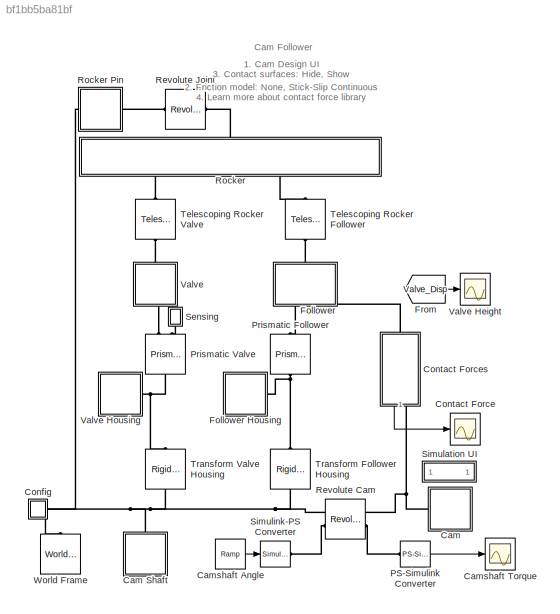
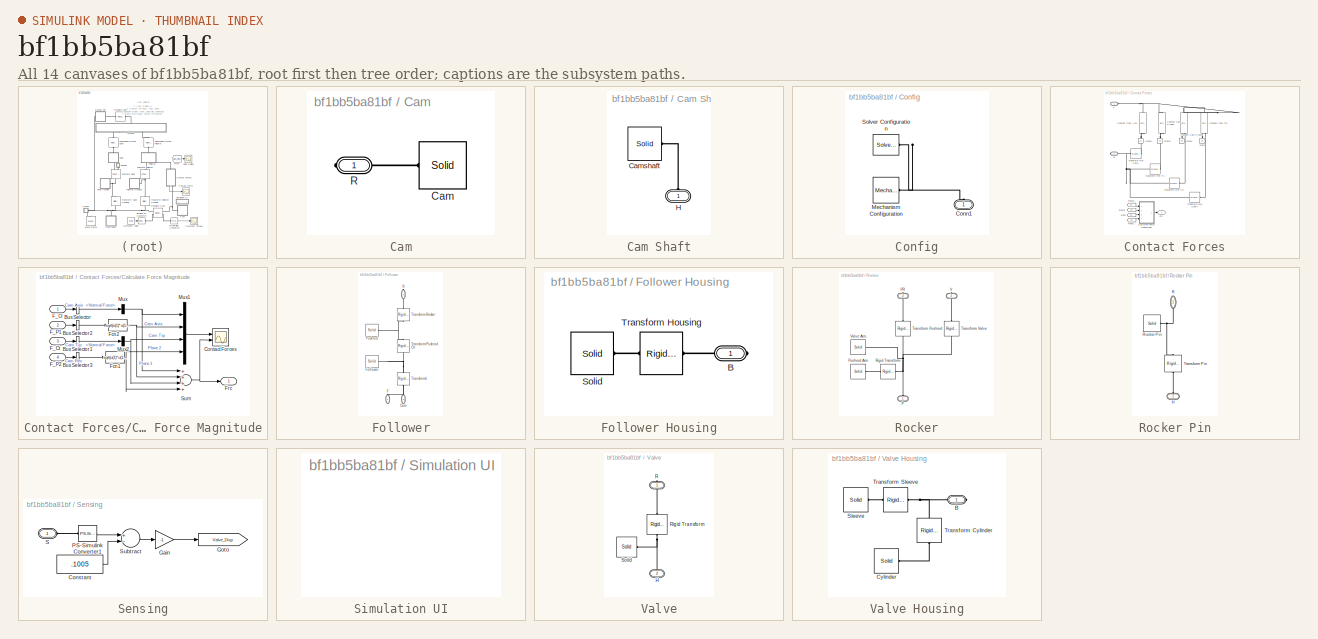
[diagram: thumbnail index - all 14 canvases of the model, root first then tree order]
MODEL slx_bf1bb5ba81bf
KIND model
CONFIG AbsTol = 1e-5
CONFIG EnableMultiTasking = on
CONFIG FixedStep = auto
CONFIG MaxStep = 1e-2
CONFIG MinStep = auto
CONFIG PostLoadFcn = warning off Simulink:Engine:UsingDefaultMaxStepSize\nwarning off sm:compiler:topologyAnalysis:DanglingBlock\n
CONFIG PreLoadFcn = Cam_Parameters
CONFIG RelTol = 1e-4
CONFIG SampleTimeConstraint = Unconstrained
CONFIG Solver = ode15s
CONFIG SolverName = ode15s
CONFIG StartFcn = tic;
CONFIG StartTime = 0.0
CONFIG StopFcn = Elapsed_Sim_Time = toc;\ndisp(['Elapsed Sim Time = ' num2str(Elapsed_Sim_Time)]);\n
CONFIG StopTime = 15
BLOCK [SubSystem] Cam
  Ports = [0, 0, 0, 0, 0, 0, 1]
  RequestExecContextInheritance = off
  Tag = CustomStyle
  Variant = off
BLOCK [SubSystem] Cam Shaft
  Ports = [0, 0, 0, 0, 0, 1]
  RequestExecContextInheritance = off
  Tag = CustomStyle
  Variant = off
BLOCK [Reference] Cam Shaft/Camshaft  REF=sm_lib/Body Elements/Solid
  Ports = [0, 0, 0, 0, 0, 0, 1]
  SourceBlock = sm_lib/Body Elements/Solid
  SourceType = Solid
BLOCK [PMIOPort] Cam Shaft/H
  Port = 1
  Side = Left
BLOCK [Reference] Cam/Cam  REF=sm_lib/Body Elements/Solid
  Ports = [0, 0, 0, 0, 0, 0, 1]
  SourceBlock = sm_lib/Body Elements/Solid
  SourceType = Solid
BLOCK [PMIOPort] Cam/R
  Port = 1
  Side = Right
BLOCK [Reference] Camshaft Angle  REF=simulink/Sources/Ramp
  Ports = [0, 1]
  SourceBlock = simulink/Sources/Ramp
  SourceType = Ramp
BLOCK [Scope] Camshaft Torque
  NumInputPorts = 1
  Ports = [1]
  ScopeSpecificationString = Simulink.scopes.TimeScopeBlockCfg('CurrentConfiguration', extmgr.ConfigurationSet(extmgr.Configuration('Core','General UI',true,'FigureColor',[0.501960784313725 0.501960784313725 0.501960784313725]),extmgr.Configuration('Core','Source UI',true),extmgr.Configuration('Sources','WiredSimulink',true,'DataLoggingVariableName','ScopeData4','DataLoggingSaveFormat','StructureWithTime','DataLoggingDecimati...<+2691ch>
BLOCK [SubSystem] Config
  Ports = [0, 0, 0, 0, 0, 1]
  RequestExecContextInheritance = off
  Variant = off
BLOCK [PMIOPort] Config/Conn1
  Port = 1
  Side = Left
BLOCK [Reference] Config/Mechanism Configuration  REF=sm_lib/Utilities/Mechanism
Configuration
  Ports = [0, 0, 0, 0, 0, 0, 1]
  SourceBlock = sm_lib/Utilities/Mechanism\nConfiguration
  SourceType = Mechanism\nConfiguration
BLOCK [Reference] Config/Solver Configuration  REF=nesl_utility/Solver
Configuration
  Ports = [0, 0, 0, 0, 0, 0, 1]
  SourceBlock = nesl_utility/Solver\nConfiguration
  SourceType = Solver\nConfiguration
BLOCK [Scope] Contact Force
  NumInputPorts = 1
  Ports = [1]
  ScopeSpecificationString = Simulink.scopes.TimeScopeBlockCfg('CurrentConfiguration', extmgr.ConfigurationSet(extmgr.Configuration('Core','General UI',true,'FigureColor',[0.501960784313725 0.501960784313725 0.501960784313725]),extmgr.Configuration('Core','Source UI',true),extmgr.Configuration('Sources','WiredSimulink',true,'DataLogging',true,'DataLoggingVariableName','Contact_Force','DataLoggingSaveFormat','StructureWithTime...<+2665ch>
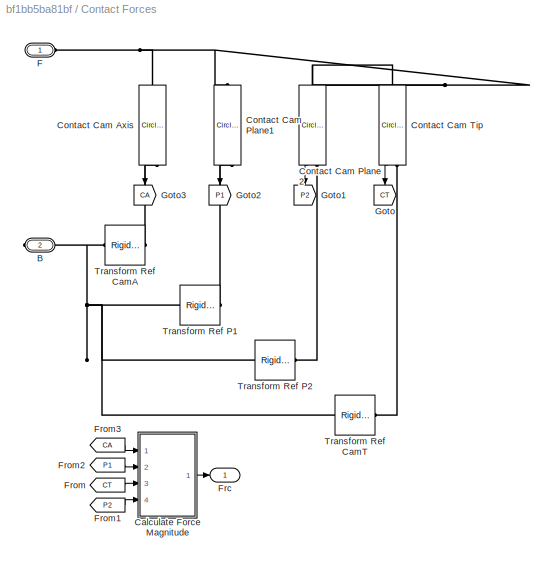
BLOCK [SubSystem] Contact Forces
  Ports = [0, 1, 0, 0, 0, 1, 1]
  RequestExecContextInheritance = off
  Variant = off
BLOCK [PMIOPort] Contact Forces/B
  Port = 2
  Side = Right
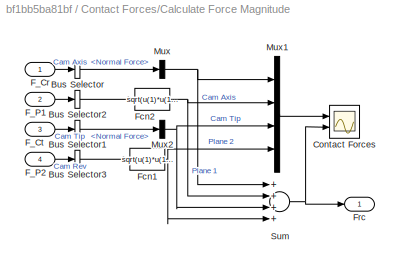
BLOCK [SubSystem] Contact Forces/Calculate Force Magnitude
  Ports = [4, 1]
  RequestExecContextInheritance = off
  Variant = off
BLOCK [BusSelector] Contact Forces/Calculate Force Magnitude/Bus Selector
  OutputSignals = Normal Force
  Ports = [1, 1]
BLOCK [BusSelector] Contact Forces/Calculate Force Magnitude/Bus Selector1
  OutputSignals = Normal Force
  Ports = [1, 1]
BLOCK [BusSelector] Contact Forces/Calculate Force Magnitude/Bus Selector2
  OutputAsBus = on
  OutputSignals = FCir.Fx,FCir.Fy
  Ports = [1, 1]
BLOCK [BusSelector] Contact Forces/Calculate Force Magnitude/Bus Selector3
  OutputAsBus = on
  OutputSignals = FCir.Fx,FCir.Fy
  Ports = [1, 1]
BLOCK [Scope] Contact Forces/Calculate Force Magnitude/Contact Forces
  NumInputPorts = 2
  Ports = [2]
  ScopeSpecificationString = Simulink.scopes.TimeScopeBlockCfg('CurrentConfiguration', extmgr.ConfigurationSet(extmgr.Configuration('Core','General UI',true,'FigureColor',[0.501960784313725 0.501960784313725 0.501960784313725]),extmgr.Configuration('Core','Source UI',true),extmgr.Configuration('Sources','WiredSimulink',true,'DataLoggingVariableName','ScopeData3','DataLoggingSaveFormat','StructureWithTime','DataLoggingDecimati...<+3835ch>
BLOCK [Inport] Contact Forces/Calculate Force Magnitude/F_Cr
  IconDisplay = Port number
BLOCK [Inport] Contact Forces/Calculate Force Magnitude/F_Ct
  IconDisplay = Port number
  Port = 3
BLOCK [Inport] Contact Forces/Calculate Force Magnitude/F_P1
  IconDisplay = Port number
  Port = 2
BLOCK [Inport] Contact Forces/Calculate Force Magnitude/F_P2
  IconDisplay = Port number
  Port = 4
BLOCK [Fcn] Contact Forces/Calculate Force Magnitude/Fcn1
  Expr = sqrt(u(1)*u(1)+u(2)*u(2))
BLOCK [Fcn] Contact Forces/Calculate Force Magnitude/Fcn2
  Expr = sqrt(u(1)*u(1)+u(2)*u(2))
BLOCK [Outport] Contact Forces/Calculate Force Magnitude/Frc
  IconDisplay = Port number
BLOCK [Mux] Contact Forces/Calculate Force Magnitude/Mux
  DisplayOption = bar
  Inputs = 1
  Ports = [1, 1]
BLOCK [Mux] Contact Forces/Calculate Force Magnitude/Mux1
  DisplayOption = bar
  Ports = [4, 1]
BLOCK [Mux] Contact Forces/Calculate Force Magnitude/Mux2
  DisplayOption = bar
  Inputs = 1
  Ports = [1, 1]
BLOCK [Sum] Contact Forces/Calculate Force Magnitude/Sum
  InputSameDT = off
  Inputs = ++++
  OutDataTypeStr = Inherit: Inherit via internal rule
  Ports = [4, 1]
  SaturateOnIntegerOverflow = off
BLOCK [Reference] Contact Forces/Contact Cam Axis  REF=Contact_Forces_Lib/2D/Circle to Circle Force
  Ports = [0, 1, 0, 0, 0, 1, 1]
  SourceBlock = Contact_Forces_Lib/2D/Circle to Circle Force
  SourceType = Circle to Circle Force
BLOCK [Reference] Contact Forces/Contact Cam Plane 2  REF=Contact_Forces_Lib/2D/Circle to Finite Line Force
  Ports = [0, 1, 0, 0, 0, 1, 1]
  SourceBlock = Contact_Forces_Lib/2D/Circle to Finite Line Force
  SourceType = Circle on Finite Line Force
BLOCK [Reference] Contact Forces/Contact Cam Plane1  REF=Contact_Forces_Lib/2D/Circle to Finite Line Force
  Ports = [0, 1, 0, 0, 0, 1, 1]
  SourceBlock = Contact_Forces_Lib/2D/Circle to Finite Line Force
  SourceType = Circle on Finite Line Force
BLOCK [Reference] Contact Forces/Contact Cam Tip  REF=Contact_Forces_Lib/2D/Circle to Circle Force
  Ports = [0, 1, 0, 0, 0, 1, 1]
  SourceBlock = Contact_Forces_Lib/2D/Circle to Circle Force
  SourceType = Circle to Circle Force
BLOCK [PMIOPort] Contact Forces/F
  Port = 1
  Side = Left
BLOCK [Outport] Contact Forces/Frc
  IconDisplay = Port number
BLOCK [From] Contact Forces/From
  GotoTag = CT
BLOCK [From] Contact Forces/From1
  GotoTag = P2
BLOCK [From] Contact Forces/From2
  GotoTag = P1
BLOCK [From] Contact Forces/From3
  GotoTag = CA
BLOCK [Goto] Contact Forces/Goto
  GotoTag = CT
BLOCK [Goto] Contact Forces/Goto1
  GotoTag = P2
BLOCK [Goto] Contact Forces/Goto2
  GotoTag = P1
BLOCK [Goto] Contact Forces/Goto3
  GotoTag = CA
BLOCK [Reference] Contact Forces/Transform Ref CamA  REF=sm_lib/Frames and
Transforms/Rigid
Transform
  Ports = [0, 0, 0, 0, 0, 1, 1]
  SourceBlock = sm_lib/Frames and\nTransforms/Rigid\nTransform
  SourceType = Rigid\nTransform
BLOCK [Reference] Contact Forces/Transform Ref CamT  REF=sm_lib/Frames and
Transforms/Rigid
Transform
  Ports = [0, 0, 0, 0, 0, 1, 1]
  SourceBlock = sm_lib/Frames and\nTransforms/Rigid\nTransform
  SourceType = Rigid\nTransform
BLOCK [Reference] Contact Forces/Transform Ref P1  REF=sm_lib/Frames and
Transforms/Rigid
Transform
  Ports = [0, 0, 0, 0, 0, 1, 1]
  SourceBlock = sm_lib/Frames and\nTransforms/Rigid\nTransform
  SourceType = Rigid\nTransform
BLOCK [Reference] Contact Forces/Transform Ref P2  REF=sm_lib/Frames and
Transforms/Rigid
Transform
  Ports = [0, 0, 0, 0, 0, 1, 1]
  SourceBlock = sm_lib/Frames and\nTransforms/Rigid\nTransform
  SourceType = Rigid\nTransform
BLOCK [SubSystem] Follower
  Ports = [0, 0, 0, 0, 0, 2, 1]
  RequestExecContextInheritance = off
  Tag = CustomStyle
  Variant = off
BLOCK [SubSystem] Follower Housing
  Ports = [0, 0, 0, 0, 0, 0, 1]
  RequestExecContextInheritance = off
  Tag = CustomStyle
  Variant = off
BLOCK [PMIOPort] Follower Housing/B
  Port = 1
  Side = Right
BLOCK [Reference] Follower Housing/Solid  REF=sm_lib/Body Elements/Solid
  Ports = [0, 0, 0, 0, 0, 0, 1]
  SourceBlock = sm_lib/Body Elements/Solid
  SourceType = Solid
BLOCK [Reference] Follower Housing/Transform Housing  REF=sm_lib/Frames and
Transforms/Rigid
Transform
  Ports = [0, 0, 0, 0, 0, 1, 1]
  SourceBlock = sm_lib/Frames and\nTransforms/Rigid\nTransform
  SourceType = Rigid\nTransform
BLOCK [PMIOPort] Follower/Cam
  Port = 3
  Side = Left
BLOCK [PMIOPort] Follower/F
  Port = 1
  Side = Left
BLOCK [Reference] Follower/Follower  REF=sm_lib/Body Elements/Solid
  Ports = [0, 0, 0, 0, 0, 0, 1]
  SourceBlock = sm_lib/Body Elements/Solid
  SourceType = Solid
BLOCK [Reference] Follower/Pushrod  REF=sm_lib/Body Elements/Solid
  Ports = [0, 0, 0, 0, 0, 0, 1]
  SourceBlock = sm_lib/Body Elements/Solid
  SourceType = Solid
BLOCK [PMIOPort] Follower/R
  Port = 2
  Side = Right
BLOCK [Reference] Follower/Transform Pushrod Ctr  REF=sm_lib/Frames and
Transforms/Rigid
Transform
  Ports = [0, 0, 0, 0, 0, 1, 1]
  SourceBlock = sm_lib/Frames and\nTransforms/Rigid\nTransform
  SourceType = Rigid\nTransform
BLOCK [Reference] Follower/Transform Rocker  REF=sm_lib/Frames and
Transforms/Rigid
Transform
  Ports = [0, 0, 0, 0, 0, 1, 1]
  SourceBlock = sm_lib/Frames and\nTransforms/Rigid\nTransform
  SourceType = Rigid\nTransform
BLOCK [Reference] Follower/Transform1  REF=sm_lib/Frames and
Transforms/Rigid
Transform
  Ports = [0, 0, 0, 0, 0, 1, 1]
  SourceBlock = sm_lib/Frames and\nTransforms/Rigid\nTransform
  SourceType = Rigid\nTransform
BLOCK [From] From
  GotoTag = Valve_Disp
  TagVisibility = global
BLOCK [Reference] PS-Simulink Converter  REF=nesl_utility/PS-Simulink
Converter
  Ports = [0, 1, 0, 0, 0, 1]
  SourceBlock = nesl_utility/PS-Simulink\nConverter
  SourceType = PS-Simulink\nConverter
BLOCK [Reference] Prismatic Follower  REF=sm_lib/Joints/Prismatic
Joint
  Ports = [0, 0, 0, 0, 0, 1, 1]
  SourceBlock = sm_lib/Joints/Prismatic\nJoint
  SourceType = Prismatic\nJoint
BLOCK [Reference] Prismatic Valve  REF=sm_lib/Joints/Prismatic
Joint
  Ports = [0, 0, 0, 0, 0, 1, 2]
  SourceBlock = sm_lib/Joints/Prismatic\nJoint
  SourceType = Prismatic\nJoint
BLOCK [Reference] Revolute Cam  REF=sm_lib/Joints/Revolute Joint
  Ports = [0, 0, 0, 0, 0, 2, 2]
  SourceBlock = sm_lib/Joints/Revolute Joint
  SourceType = Revolute Joint
BLOCK [Reference] Revolute Joint  REF=sm_lib/Joints/Revolute Joint
  Ports = [0, 0, 0, 0, 0, 1, 1]
  SourceBlock = sm_lib/Joints/Revolute Joint
  SourceType = Revolute Joint
BLOCK [SubSystem] Rocker
  Ports = [0, 0, 0, 0, 0, 1, 2]
  RequestExecContextInheritance = off
  Tag = CustomStyle
  Variant = off
BLOCK [SubSystem] Rocker Pin
  Ports = [0, 0, 0, 0, 0, 1, 1]
  RequestExecContextInheritance = off
  Tag = CustomStyle
  Variant = off
BLOCK [PMIOPort] Rocker Pin/H
  Port = 2
  Side = Left
BLOCK [PMIOPort] Rocker Pin/R
  Port = 1
  Side = Right
BLOCK [Reference] Rocker Pin/Rocker Pin  REF=sm_lib/Body Elements/Solid
  Ports = [0, 0, 0, 0, 0, 0, 1]
  SourceBlock = sm_lib/Body Elements/Solid
  SourceType = Solid
BLOCK [Reference] Rocker Pin/Transform Pin  REF=sm_lib/Frames and
Transforms/Rigid
Transform
  Ports = [0, 0, 0, 0, 0, 1, 1]
  SourceBlock = sm_lib/Frames and\nTransforms/Rigid\nTransform
  SourceType = Rigid\nTransform
BLOCK [PMIOPort] Rocker/P
  Port = 1
  Side = Left
BLOCK [PMIOPort] Rocker/PR
  Port = 3
  Side = Right
BLOCK [Reference] Rocker/Pushrod Arm  REF=sm_lib/Body Elements/Solid
  Ports = [0, 0, 0, 0, 0, 0, 1]
  SourceBlock = sm_lib/Body Elements/Solid
  SourceType = Solid
BLOCK [Reference] Rocker/Rigid Transform  REF=sm_lib/Frames and
Transforms/Rigid
Transform
  Ports = [0, 0, 0, 0, 0, 1, 1]
  SourceBlock = sm_lib/Frames and\nTransforms/Rigid\nTransform
  SourceType = Rigid\nTransform
BLOCK [Reference] Rocker/Transform Pushrod  REF=sm_lib/Frames and
Transforms/Rigid
Transform
  Ports = [0, 0, 0, 0, 0, 1, 1]
  SourceBlock = sm_lib/Frames and\nTransforms/Rigid\nTransform
  SourceType = Rigid\nTransform
BLOCK [Reference] Rocker/Transform Valve  REF=sm_lib/Frames and
Transforms/Rigid
Transform
  Ports = [0, 0, 0, 0, 0, 1, 1]
  SourceBlock = sm_lib/Frames and\nTransforms/Rigid\nTransform
  SourceType = Rigid\nTransform
BLOCK [PMIOPort] Rocker/V
  Port = 2
  Side = Right
BLOCK [Reference] Rocker/Valve Arm  REF=sm_lib/Body Elements/Solid
  Ports = [0, 0, 0, 0, 0, 0, 1]
  SourceBlock = sm_lib/Body Elements/Solid
  SourceType = Solid
BLOCK [SubSystem] Sensing
  Ports = [0, 0, 0, 0, 0, 1]
  RequestExecContextInheritance = off
  Variant = off
BLOCK [Constant] Sensing/Constant
  Value = .1005
BLOCK [Gain] Sensing/Gain
  Gain = -1
  OutDataTypeStr = Inherit: Inherit via internal rule
  ParamDataTypeStr = Inherit: Inherit via internal rule
  SaturateOnIntegerOverflow = off
BLOCK [Goto] Sensing/Goto
  GotoTag = Valve_Disp
  TagVisibility = global
BLOCK [Reference] Sensing/PS-Simulink Converter1  REF=nesl_utility/PS-Simulink
Converter
  Ports = [0, 1, 0, 0, 0, 1]
  SourceBlock = nesl_utility/PS-Simulink\nConverter
  SourceType = PS-Simulink\nConverter
BLOCK [PMIOPort] Sensing/S
  Port = 1
  Side = Left
BLOCK [Sum] Sensing/Subtract
  InputSameDT = off
  Inputs = +-
  OutDataTypeStr = Inherit: Inherit via internal rule
  Ports = [2, 1]
  SaturateOnIntegerOverflow = off
BLOCK [SubSystem] Simulation UI
  OpenFcn = Cam_Follower_UI
  Ports = []
  RequestExecContextInheritance = off
  Variant = off
BLOCK [Reference] Simulink-PS Converter  REF=nesl_utility/Simulink-PS
Converter
  Ports = [1, 0, 0, 0, 0, 0, 1]
  SourceBlock = nesl_utility/Simulink-PS\nConverter
  SourceType = Simulink-PS\nConverter
BLOCK [Reference] Telescoping Rocker Follower  REF=sm_lib/Joints/Telescoping
Joint
  Ports = [0, 0, 0, 0, 0, 1, 1]
  SourceBlock = sm_lib/Joints/Telescoping\nJoint
  SourceType = Telescoping\nJoint
BLOCK [Reference] Telescoping Rocker Valve  REF=sm_lib/Joints/Telescoping
Joint
  Ports = [0, 0, 0, 0, 0, 1, 1]
  SourceBlock = sm_lib/Joints/Telescoping\nJoint
  SourceType = Telescoping\nJoint
BLOCK [Reference] Transform Follower Housing  REF=sm_lib/Frames and
Transforms/Rigid
Transform
  Ports = [0, 0, 0, 0, 0, 1, 1]
  SourceBlock = sm_lib/Frames and\nTransforms/Rigid\nTransform
  SourceType = Rigid\nTransform
BLOCK [Reference] Transform Valve Housing  REF=sm_lib/Frames and
Transforms/Rigid
Transform
  Ports = [0, 0, 0, 0, 0, 1, 1]
  SourceBlock = sm_lib/Frames and\nTransforms/Rigid\nTransform
  SourceType = Rigid\nTransform
BLOCK [SubSystem] Valve
  Ports = [0, 0, 0, 0, 0, 1, 1]
  RequestExecContextInheritance = off
  Tag = CustomStyle
  Variant = off
BLOCK [Scope] Valve Height
  NumInputPorts = 1
  Ports = [1]
  ScopeSpecificationString = Simulink.scopes.TimeScopeBlockCfg('CurrentConfiguration', extmgr.ConfigurationSet(extmgr.Configuration('Core','General UI',true,'FigureColor',[0.501960784313725 0.501960784313725 0.501960784313725]),extmgr.Configuration('Core','Source UI',true),extmgr.Configuration('Sources','WiredSimulink',true,'DataLoggingVariableName','ScopeData1','DataLoggingSaveFormat','StructureWithTime','DataLoggingDecimati...<+2677ch>
BLOCK [SubSystem] Valve Housing
  Ports = [0, 0, 0, 0, 0, 0, 1]
  RequestExecContextInheritance = off
  Tag = CustomStyle
  Variant = off
BLOCK [PMIOPort] Valve Housing/B
  Port = 1
  Side = Right
BLOCK [Reference] Valve Housing/Cylinder  REF=sm_lib/Body Elements/Solid
  Ports = [0, 0, 0, 0, 0, 0, 1]
  SourceBlock = sm_lib/Body Elements/Solid
  SourceType = Solid
BLOCK [Reference] Valve Housing/Sleeve  REF=sm_lib/Body Elements/Solid
  Ports = [0, 0, 0, 0, 0, 0, 1]
  SourceBlock = sm_lib/Body Elements/Solid
  SourceType = Solid
BLOCK [Reference] Valve Housing/Transform Cylinder  REF=sm_lib/Frames and
Transforms/Rigid
Transform
  Ports = [0, 0, 0, 0, 0, 1, 1]
  SourceBlock = sm_lib/Frames and\nTransforms/Rigid\nTransform
  SourceType = Rigid\nTransform
BLOCK [Reference] Valve Housing/Transform Sleeve  REF=sm_lib/Frames and
Transforms/Rigid
Transform
  Ports = [0, 0, 0, 0, 0, 1, 1]
  SourceBlock = sm_lib/Frames and\nTransforms/Rigid\nTransform
  SourceType = Rigid\nTransform
BLOCK [PMIOPort] Valve/H
  Port = 2
  Side = Left
BLOCK [PMIOPort] Valve/R
  Port = 1
  Side = Right
BLOCK [Reference] Valve/Rigid Transform  REF=sm_lib/Frames and
Transforms/Rigid
Transform
  Ports = [0, 0, 0, 0, 0, 1, 1]
  SourceBlock = sm_lib/Frames and\nTransforms/Rigid\nTransform
  SourceType = Rigid\nTransform
BLOCK [Reference] Valve/Solid  REF=sm_lib/Body Elements/Solid
  Ports = [0, 0, 0, 0, 0, 0, 1]
  SourceBlock = sm_lib/Body Elements/Solid
  SourceType = Solid
BLOCK [Reference] World Frame  REF=sm_lib/Frames and
Transforms/World Frame
  Ports = [0, 0, 0, 0, 0, 0, 1]
  SourceBlock = sm_lib/Frames and\nTransforms/World Frame
  SourceType = World Frame
ANNOTATION (root): 1. Cam Design UI 2. Friction model: None , Stick-Slip Continuous 3. Contact surfaces: Hide , Show 4. Learn more about contact force library
ANNOTATION (root): Cam Follower
LINE Camshaft Angle:1 -> Simulink-PS Converter:1
LINE Contact Forces/Calculate Force Magnitude/Bus Selector1:1 -> Contact Forces/Calculate Force Magnitude/Mux2:1
LINE Contact Forces/Calculate Force Magnitude/Bus Selector2:1 -> Contact Forces/Calculate Force Magnitude/Fcn2:1
LINE Contact Forces/Calculate Force Magnitude/Bus Selector3:1 -> Contact Forces/Calculate Force Magnitude/Fcn1:1
LINE Contact Forces/Calculate Force Magnitude/Bus Selector:1 -> Contact Forces/Calculate Force Magnitude/Mux:1
LINE Contact Forces/Calculate Force Magnitude/F_Cr:1 -> Contact Forces/Calculate Force Magnitude/Bus Selector:1
LINE Contact Forces/Calculate Force Magnitude/F_Ct:1 -> Contact Forces/Calculate Force Magnitude/Bus Selector1:1
LINE Contact Forces/Calculate Force Magnitude/F_P1:1 -> Contact Forces/Calculate Force Magnitude/Bus Selector2:1
LINE Contact Forces/Calculate Force Magnitude/F_P2:1 -> Contact Forces/Calculate Force Magnitude/Bus Selector3:1
NET Contact Forces/Calculate Force Magnitude/Fcn1:1 -> Contact Forces/Calculate Force Magnitude/Mux1:4, Contact Forces/Calculate Force Magnitude/Sum:4
NET Contact Forces/Calculate Force Magnitude/Fcn2:1 -> Contact Forces/Calculate Force Magnitude/Mux1:2, Contact Forces/Calculate Force Magnitude/Sum:2
LINE Contact Forces/Calculate Force Magnitude/Mux1:1 -> Contact Forces/Calculate Force Magnitude/Contact Forces:1
NET Contact Forces/Calculate Force Magnitude/Mux2:1 -> Contact Forces/Calculate Force Magnitude/Mux1:3, Contact Forces/Calculate Force Magnitude/Sum:3
NET Contact Forces/Calculate Force Magnitude/Mux:1 -> Contact Forces/Calculate Force Magnitude/Mux1:1, Contact Forces/Calculate Force Magnitude/Sum:1
NET Contact Forces/Calculate Force Magnitude/Sum:1 -> Contact Forces/Calculate Force Magnitude/Contact Forces:2, Contact Forces/Calculate Force Magnitude/Frc:1
LINE Contact Forces/Calculate Force Magnitude:1 -> Contact Forces/Frc:1
LINE Contact Forces/Contact Cam Axis:1 -> Contact Forces/Goto3:1
LINE Contact Forces/Contact Cam Plane 2:1 -> Contact Forces/Goto1:1
LINE Contact Forces/Contact Cam Plane1:1 -> Contact Forces/Goto2:1
LINE Contact Forces/Contact Cam Tip:1 -> Contact Forces/Goto:1
LINE Contact Forces/From1:1 -> Contact Forces/Calculate Force Magnitude:4
LINE Contact Forces/From2:1 -> Contact Forces/Calculate Force Magnitude:2
LINE Contact Forces/From3:1 -> Contact Forces/Calculate Force Magnitude:1
LINE Contact Forces/From:1 -> Contact Forces/Calculate Force Magnitude:3
LINE Contact Forces:1 -> Contact Force:1
LINE From:1 -> Valve Height:1
LINE PS-Simulink Converter:1 -> Camshaft Torque:1
LINE Sensing/Constant:1 -> Sensing/Subtract:2
LINE Sensing/Gain:1 -> Sensing/Goto:1
LINE Sensing/PS-Simulink Converter1:1 -> Sensing/Subtract:1
LINE Sensing/Subtract:1 -> Sensing/Gain:1
PLINE Cam Shaft/Camshaft:RConn1 -- Cam Shaft/H:RConn1
PNET net1: Cam Shaft:LConn1 -- Config:LConn1 -- Revolute Cam:LConn1 -- Rocker Pin:LConn1 -- Transform Follower Housing:LConn1 -- Transform Valve Housing:LConn1 -- World Frame:RConn1
PLINE Cam/Cam:RConn1 -- Cam/R:RConn1
PNET net2: Cam:RConn1 -- Contact Forces:RConn1 -- Revolute Cam:RConn1
PNET net3: Config/Conn1:RConn1 -- Config/Mechanism Configuration:RConn1 -- Config/Solver Configuration:RConn1
PNET net4: Contact Forces/B:RConn1 -- Contact Forces/Transform Ref CamA:LConn1 -- Contact Forces/Transform Ref CamT:LConn1 -- Contact Forces/Transform Ref P1:LConn1 -- Contact Forces/Transform Ref P2:LConn1
PNET net5: Contact Forces/Contact Cam Axis:LConn1 -- Contact Forces/Contact Cam Plane 2:LConn1 -- Contact Forces/Contact Cam Plane1:LConn1 -- Contact Forces/Contact Cam Tip:LConn1 -- Contact Forces/F:RConn1
PLINE Contact Forces/Contact Cam Axis:RConn1 -- Contact Forces/Transform Ref CamA:RConn1
PLINE Contact Forces/Contact Cam Plane 2:RConn1 -- Contact Forces/Transform Ref P2:RConn1
PLINE Contact Forces/Contact Cam Plane1:RConn1 -- Contact Forces/Transform Ref P1:RConn1
PLINE Contact Forces/Contact Cam Tip:RConn1 -- Contact Forces/Transform Ref CamT:RConn1
PLINE Contact Forces:LConn1 -- Follower:LConn2
PLINE Follower Housing/B:RConn1 -- Follower Housing/Transform Housing:LConn1
PLINE Follower Housing/Solid:RConn1 -- Follower Housing/Transform Housing:RConn1
PNET net6: Follower Housing:RConn1 -- Prismatic Follower:LConn1 -- Transform Follower Housing:RConn1
PLINE Follower/Cam:RConn1 -- Follower/Transform1:LConn1
PNET net7: Follower/F:RConn1 -- Follower/Follower:RConn1 -- Follower/Transform Pushrod Ctr:LConn1 -- Follower/Transform1:RConn1
PNET net8: Follower/Pushrod:RConn1 -- Follower/Transform Pushrod Ctr:RConn1 -- Follower/Transform Rocker:LConn1
PLINE Follower/R:RConn1 -- Follower/Transform Rocker:RConn1
PLINE Follower:LConn1 -- Prismatic Follower:RConn1
PLINE Follower:RConn1 -- Telescoping Rocker Follower:LConn1
PLINE PS-Simulink Converter:LConn1 -- Revolute Cam:RConn2
PNET net9: Prismatic Valve:LConn1 -- Transform Valve Housing:RConn1 -- Valve Housing:RConn1
PLINE Prismatic Valve:RConn1 -- Valve:LConn1
PLINE Prismatic Valve:RConn2 -- Sensing:LConn1
PLINE Revolute Cam:LConn2 -- Simulink-PS Converter:RConn1
PLINE Revolute Joint:LConn1 -- Rocker Pin:RConn1
PLINE Revolute Joint:RConn1 -- Rocker:LConn1
PLINE Rocker Pin/H:RConn1 -- Rocker Pin/Transform Pin:LConn1
PNET net10: Rocker Pin/R:RConn1 -- Rocker Pin/Rocker Pin:RConn1 -- Rocker Pin/Transform Pin:RConn1
PNET net11: Rocker/P:RConn1 -- Rocker/Rigid Transform:LConn1 -- Rocker/Transform Pushrod:LConn1 -- Rocker/Transform Valve:LConn1 -- Rocker/Valve Arm:RConn1
PLINE Rocker/PR:RConn1 -- Rocker/Transform Pushrod:RConn1
PLINE Rocker/Pushrod Arm:RConn1 -- Rocker/Rigid Transform:RConn1
PLINE Rocker/Transform Valve:RConn1 -- Rocker/V:RConn1
PLINE Rocker:RConn1 -- Telescoping Rocker Valve:RConn1
PLINE Rocker:RConn2 -- Telescoping Rocker Follower:RConn1
PLINE Sensing/PS-Simulink Converter1:LConn1 -- Sensing/S:RConn1
PLINE Telescoping Rocker Valve:LConn1 -- Valve:RConn1
PNET net12: Valve Housing/B:RConn1 -- Valve Housing/Transform Cylinder:LConn1 -- Valve Housing/Transform Sleeve:LConn1
PLINE Valve Housing/Cylinder:RConn1 -- Valve Housing/Transform Cylinder:RConn1
PLINE Valve Housing/Sleeve:RConn1 -- Valve Housing/Transform Sleeve:RConn1
PNET net13: Valve/H:RConn1 -- Valve/Rigid Transform:RConn1 -- Valve/Solid:RConn1
PLINE Valve/R:RConn1 -- Valve/Rigid Transform:LConn1
note: NET lines group one-source signal fan-out (src -> all destinations, sorted); 1:1 wires keep LINE; PNET lines group multi-terminal physical nets as a canonical sorted terminal list (undirected conserving connections); 2-terminal nets keep the pairwise PLINE form
